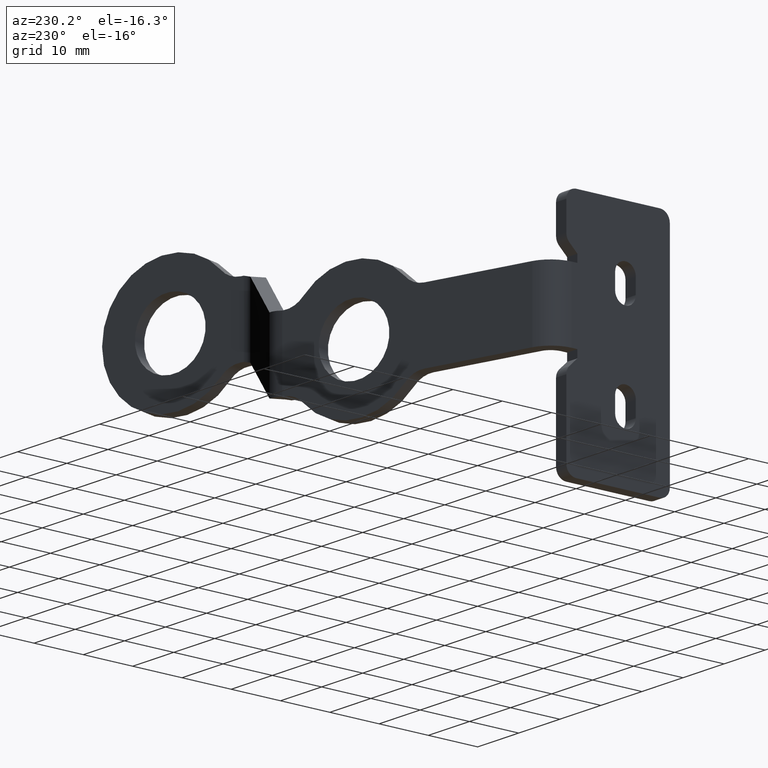
[diagram: clean part render]
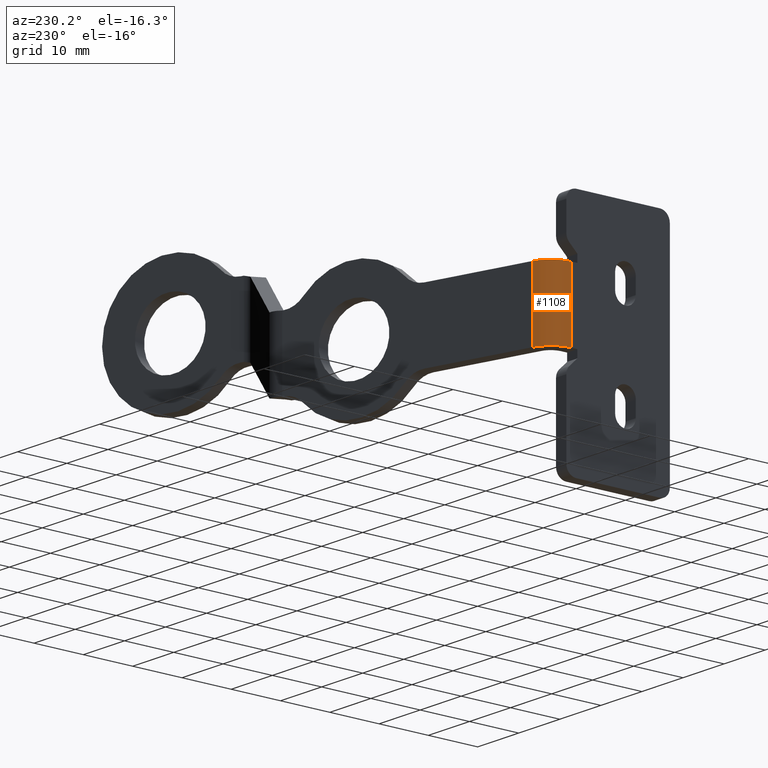
[diagram: same view with one face highlighted and labeled with its STEP entity id]
A machine part, auxiliary view. The second image highlights one B-rep face of the part: STEP entity #1108.
In plain terms, the highlighted cylindrical surface (edge-blend (fillet) strip) has radius 5 mm, axis along (0, 0, -1).
Its self-contained STEP definition (entity closure, byte-faithful):
#52=CIRCLE('',#1171,5.);
#53=CIRCLE('',#1173,5.);
#102=CYLINDRICAL_SURFACE('',#1222,5.00000000000001);
#153=FACE_OUTER_BOUND('',#219,.T.);
#219=EDGE_LOOP('',(#924,#925,#926,#927));
#260=LINE('',#1619,#366);
#325=LINE('',#1917,#431);
#366=VECTOR('',#1293,10.);
#431=VECTOR('',#1498,10.);
#475=VERTEX_POINT('',#1616);
#476=VERTEX_POINT('',#1618);
#494=VERTEX_POINT('',#1671);
#496=VERTEX_POINT('',#1678);
#580=EDGE_CURVE('',#475,#476,#260,.T.);
#609=EDGE_CURVE('',#494,#476,#52,.T.);
#611=EDGE_CURVE('',#475,#496,#53,.T.);
#687=EDGE_CURVE('',#494,#496,#325,.T.);
#924=ORIENTED_EDGE('',*,*,#687,.F.);
#925=ORIENTED_EDGE('',*,*,#609,.T.);
#926=ORIENTED_EDGE('',*,*,#580,.F.);
#927=ORIENTED_EDGE('',*,*,#611,.T.);
#1108=ADVANCED_FACE('',(#153),#102,.T.);
#1171=AXIS2_PLACEMENT_3D('',#1676,#1349,#1350);
#1173=AXIS2_PLACEMENT_3D('',#1681,#1354,#1355);
#1222=AXIS2_PLACEMENT_3D('',#1916,#1496,#1497);
#1293=DIRECTION('',(0.,0.,-1.));
#1349=DIRECTION('center_axis',(0.,0.,1.));
#1350=DIRECTION('ref_axis',(-0.25881904510252,0.965925826289068,0.));
#1354=DIRECTION('center_axis',(0.,0.,-1.));
#1355=DIRECTION('ref_axis',(-1.,-4.44089209850063E-16,0.));
#1496=DIRECTION('center_axis',(0.,0.,-1.));
#1497=DIRECTION('ref_axis',(-1.,-1.95399252334028E-16,0.));
#1498=DIRECTION('',(0.,0.,1.));
#1616=CARTESIAN_POINT('',(0.,11.,21.5));
#1618=CARTESIAN_POINT('',(0.,11.,7.50000000000001));
#1619=CARTESIAN_POINT('',(0.,11.,33.5));
#1671=CARTESIAN_POINT('',(3.70590477448739,15.8296291314453,7.50000000000001));
#1676=CARTESIAN_POINT('Origin',(5.,11.,7.50000000000001));
#1678=CARTESIAN_POINT('',(3.70590477448739,15.8296291314453,21.5));
#1681=CARTESIAN_POINT('Origin',(5.,11.,21.5));
#1916=CARTESIAN_POINT('Origin',(5.,11.,14.5));
#1917=CARTESIAN_POINT('',(3.70590477448739,15.8296291314453,14.5));